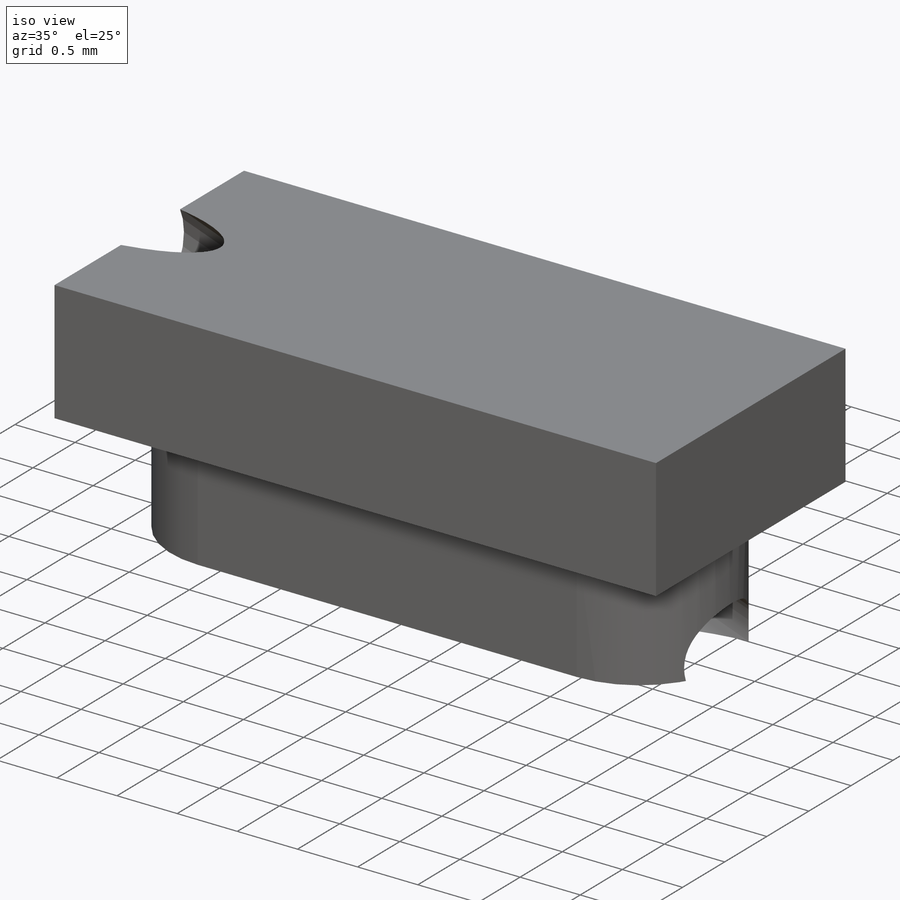
[diagram: iso view]
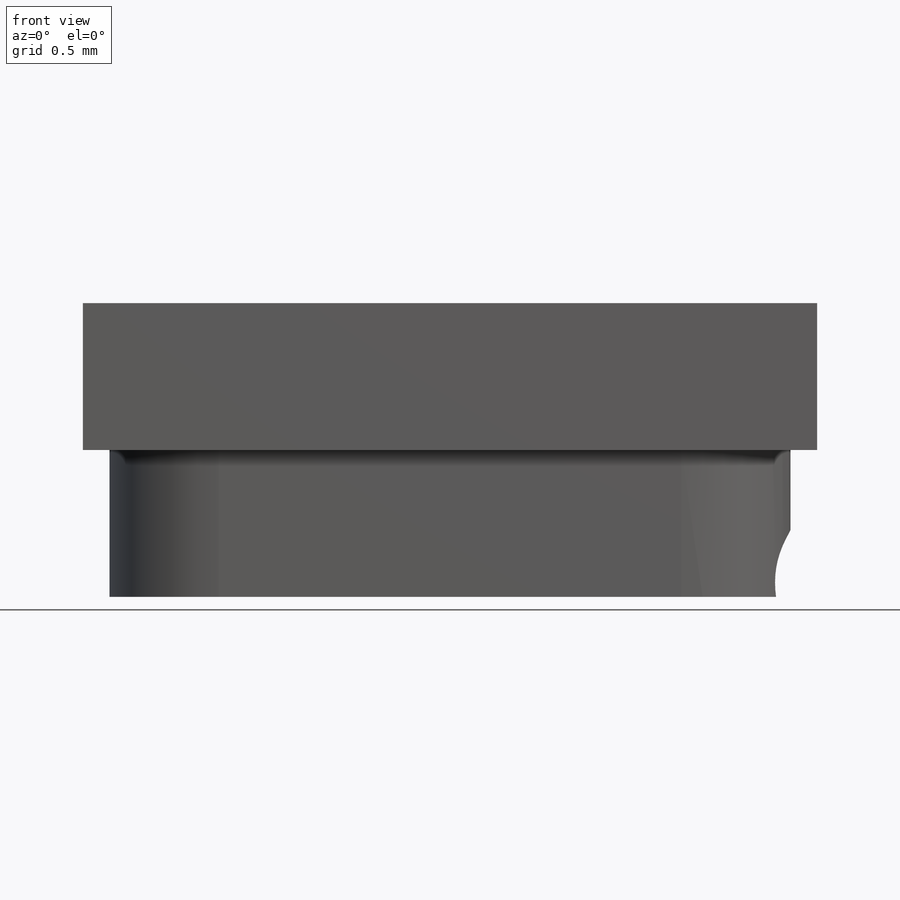
[diagram: front view]
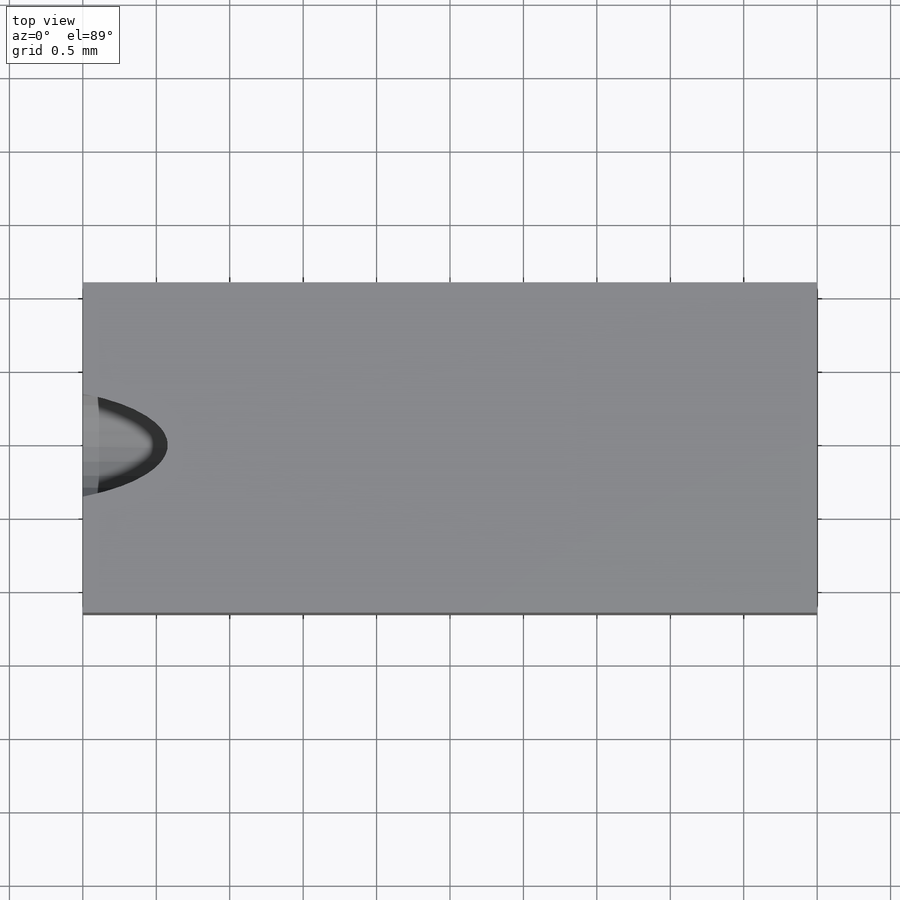
[diagram: top view]
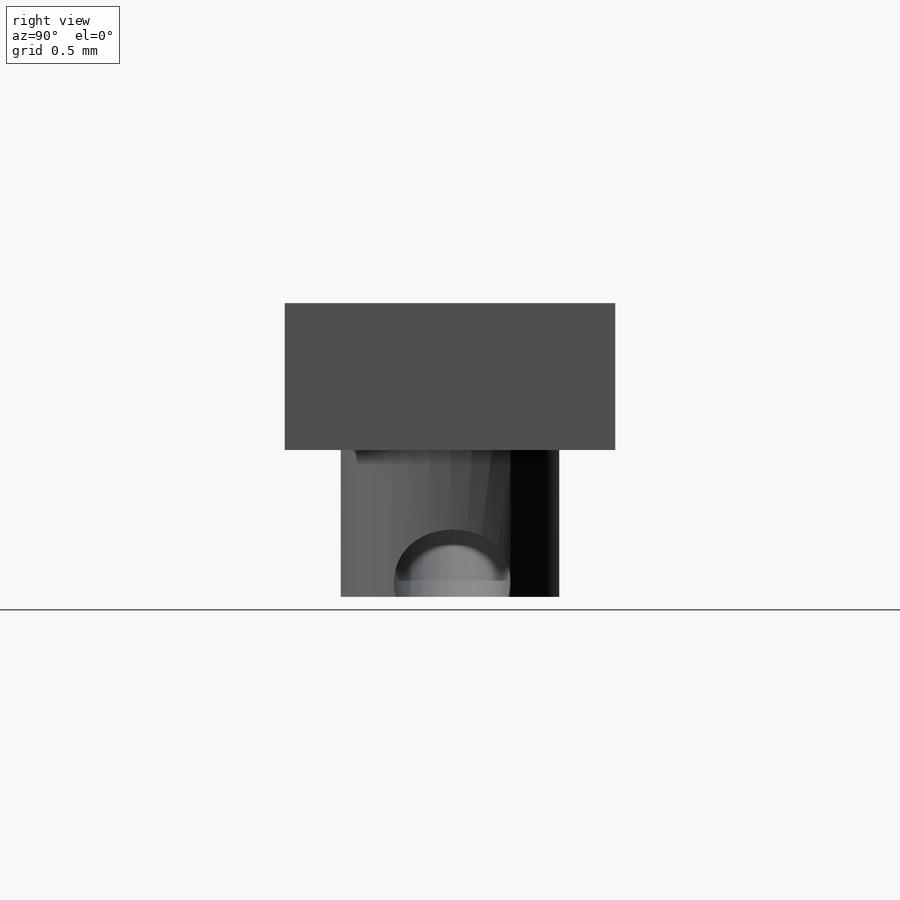
[diagram: right view]
SOLIDWORKS PART (.sldprt)
format: sldprt  version: not decoded by parser v0  size: 187,904 bytes
history: native  units: mm
features: sketch x6, extrude x2, sweep x2, material x1, plane x1 (+13 scaffold rows collapsed)
feature tree (25):
  scaffold x13  (default folders/planes/origin — collapsed)
  material  "Material <not specified>"
  sketch  "Sketch1"  dims[c1.D1=~0.79375mm c2.D1=~0.348438mm c2.D3=~0.74375mm c2.D4=~0.79375mm c2.D2=3.15mm c3.D1=1.5875mm]
  extrude  "Boss-Extrude1"  Depth=1mm
  sketch  "Sketch2"  dims[c1.D1=5.0mm c1.D2=~1.178583mm c2.D1=1.0mm c3.D1=70.0deg c4.D1=~7.594236mm c5.D1=20.0deg c6.D1=~7.414023mm c7.D1=20.0deg]
  plane  "Plane1"
  sketch  "Sketch5"  dims[c1.D1=~1.579511mm c1.D2=~3.692831mm c2.D1=2.25mm c2.D2=0.4mm c2.D3=0.4mm c2.D4=0.375mm c3.D2=5.0mm c3.D3=~1.874023mm]
  extrude  "Boss-Extrude2"  Depth=1mm
  sketch  "Sketch4"  dims[D1=~0.79375mm]
  sweep  "Cut-Sweep3"
  sketch  "Sketch6"  dims[c1.D1=~5.712114mm c2.D1=20.0deg]
  sweep  "Cut-Sweep4"
  sketch  "Sketch4<2>"
decode coverage: 7 of 10 modeling features carry decoded parameters
note: ~ marks probable driven/reference dimensions
note: suppression state not decoded; provenance and decode notes live in map.json
